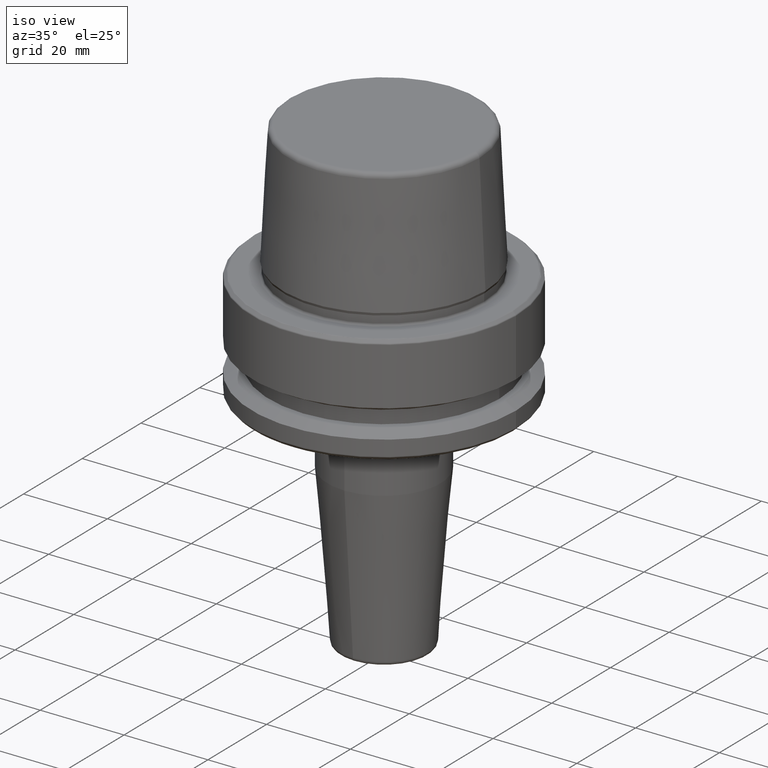
[diagram: clean part render]
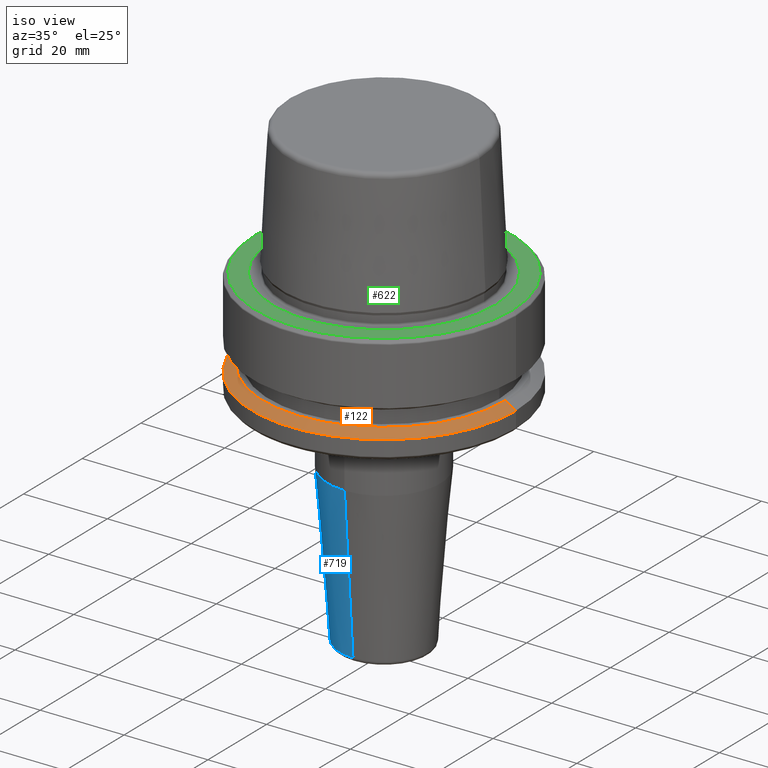
[diagram: same view with three faces highlighted in distinct colors, each labeled with its STEP entity id]
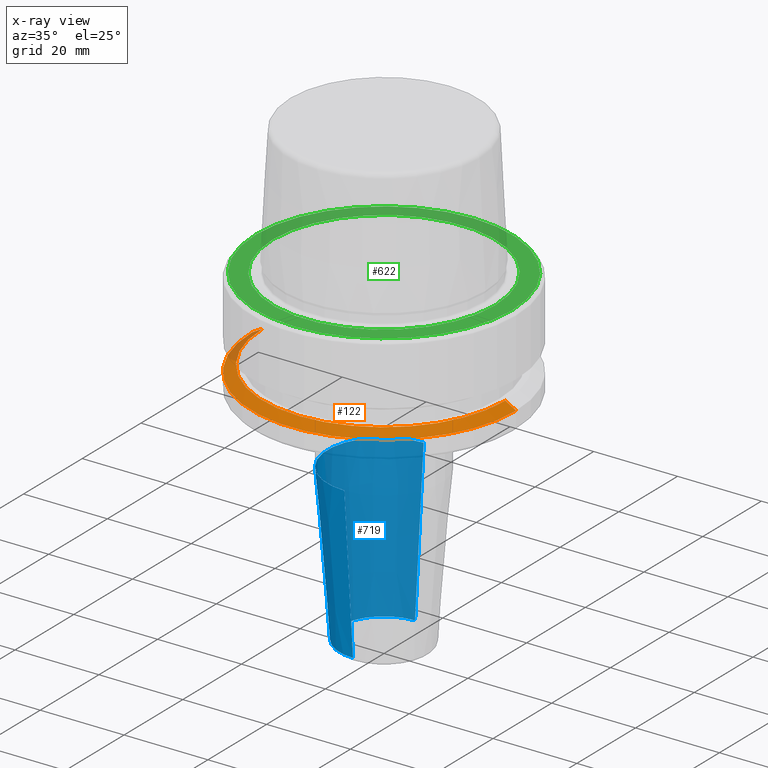
[diagram: x-ray of the same camera — body ghosted, the three highlighted faces saturated]
A machine part, iso view with three faces highlighted in distinct colors.
The next image is the same camera in x-ray (body ghosted, the three faces saturated) — at least one of them is partly hidden behind the body in this view.
Their STEP definitions:

[orange] entity #122 — the highlighted conical surface has half-angle 60 deg.
#44 = CARTESIAN_POINT ( 'NONE',  ( 31.50000000000000000, 3.857637417314162700E-015, -21.37749907475931700 ) ) ;
#70 = ORIENTED_EDGE ( 'NONE', *, *, #872, .T. ) ;
#75 = DIRECTION ( 'NONE',  ( 0.0000000000000000000, 0.0000000000000000000, -1.000000000000000000 ) ) ;
#89 = DIRECTION ( 'NONE',  ( -0.8660254037844410400, 0.0000000000000000000, -0.4999999999999958400 ) ) ;
#117 = AXIS2_PLACEMENT_3D ( 'NONE', #1102, #518, #1196 ) ;
#122 = ADVANCED_FACE ( 'NONE', ( #561 ), #525, .T. ) ;
#159 = VERTEX_POINT ( 'NONE', #791 ) ;
#183 = CARTESIAN_POINT ( 'NONE',  ( 31.50000000000000000, 0.0000000000000000000, -21.37749907475931700 ) ) ;
#262 = DIRECTION ( 'NONE',  ( -0.0000000000000000000, -0.0000000000000000000, 1.000000000000000000 ) ) ;
#285 = VERTEX_POINT ( 'NONE', #1128 ) ;
#308 = ORIENTED_EDGE ( 'NONE', *, *, #644, .F. ) ;
#397 = VERTEX_POINT ( 'NONE', #183 ) ;
#460 = DIRECTION ( 'NONE',  ( -1.000000000000000000, 0.0000000000000000000, 0.0000000000000000000 ) ) ;
#518 = DIRECTION ( 'NONE',  ( -0.0000000000000000000, -0.0000000000000000000, 1.000000000000000000 ) ) ;
#525 = CONICAL_SURFACE ( 'NONE', #1174, 31.50000000000000000, 1.047197551196602500 ) ;
#561 = FACE_OUTER_BOUND ( 'NONE', #1073, .T. ) ;
#617 = CIRCLE ( 'NONE', #784, 31.50000000000000000 ) ;
#629 = DIRECTION ( 'NONE',  ( 0.8660254037844410400, 1.060575238724909700E-016, -0.4999999999999958400 ) ) ;
#644 = EDGE_CURVE ( 'NONE', #990, #397, #939, .T. ) ;
#676 = CARTESIAN_POINT ( 'NONE',  ( -31.50000000000000000, 0.0000000000000000000, -21.37749907475931700 ) ) ;
#701 = CARTESIAN_POINT ( 'NONE',  ( 28.94089653438085100, 3.700937523921292900E-015, -19.90000000000001600 ) ) ;
#729 = ORIENTED_EDGE ( 'NONE', *, *, #1075, .F. ) ;
#750 = CIRCLE ( 'NONE', #117, 28.94089653438085100 ) ;
#784 = AXIS2_PLACEMENT_3D ( 'NONE', #862, #262, #957 ) ;
#791 = CARTESIAN_POINT ( 'NONE',  ( -31.50000000000000000, 3.857637417314162700E-015, -21.37749907475931700 ) ) ;
#827 = EDGE_CURVE ( 'NONE', #159, #397, #617, .T. ) ;
#862 = CARTESIAN_POINT ( 'NONE',  ( 0.0000000000000000000, 0.0000000000000000000, -21.37749907475931700 ) ) ;
#872 = EDGE_CURVE ( 'NONE', #285, #159, #1184, .T. ) ;
#931 = VECTOR ( 'NONE', #89, 1000.000000000000100 ) ;
#939 = LINE ( 'NONE', #44, #1192 ) ;
#944 = CARTESIAN_POINT ( 'NONE',  ( 0.0000000000000000000, 0.0000000000000000000, -21.37749907475931700 ) ) ;
#957 = DIRECTION ( 'NONE',  ( 1.000000000000000000, 0.0000000000000000000, 0.0000000000000000000 ) ) ;
#963 = ORIENTED_EDGE ( 'NONE', *, *, #827, .T. ) ;
#990 = VERTEX_POINT ( 'NONE', #701 ) ;
#1073 = EDGE_LOOP ( 'NONE', ( #308, #729, #70, #963 ) ) ;
#1075 = EDGE_CURVE ( 'NONE', #285, #990, #750, .T. ) ;
#1102 = CARTESIAN_POINT ( 'NONE',  ( 0.0000000000000000000, 0.0000000000000000000, -19.90000000000001600 ) ) ;
#1128 = CARTESIAN_POINT ( 'NONE',  ( -28.94089653438085100, 0.0000000000000000000, -19.90000000000001600 ) ) ;
#1174 = AXIS2_PLACEMENT_3D ( 'NONE', #944, #75, #460 ) ;
#1184 = LINE ( 'NONE', #676, #931 ) ;
#1192 = VECTOR ( 'NONE', #629, 1000.000000000000100 ) ;
#1196 = DIRECTION ( 'NONE',  ( 1.000000000000000000, 0.0000000000000000000, 0.0000000000000000000 ) ) ;

[blue] entity #719 — the highlighted conical surface has half-angle 4.5 deg.
#1 = DIRECTION ( 'NONE',  ( -0.0000000000000000000, -1.814291554292374900E-016, -1.000000000000000000 ) ) ;
#21 = ORIENTED_EDGE ( 'NONE', *, *, #809, .T. ) ;
#67 = VERTEX_POINT ( 'NONE', #746 ) ;
#126 = VERTEX_POINT ( 'NONE', #170 ) ;
#157 = CARTESIAN_POINT ( 'NONE',  ( 0.0000000000000000000, -9.629980005223225900E-015, -79.07845909572783700 ) ) ;
#170 = CARTESIAN_POINT ( 'NONE',  ( 0.0000000000000000000, -13.50000000000000200, -41.88138579147234000 ) ) ;
#231 = CARTESIAN_POINT ( 'NONE',  ( 0.0000000000000000000, -2.881346411192717100E-015, -41.88138579147234000 ) ) ;
#249 = DIRECTION ( 'NONE',  ( 0.0000000000000000000, 1.000000000000000000, 0.0000000000000000000 ) ) ;
#318 = EDGE_CURVE ( 'NONE', #126, #67, #1057, .T. ) ;
#382 = ORIENTED_EDGE ( 'NONE', *, *, #318, .T. ) ;
#403 = CIRCLE ( 'NONE', #1162, 10.57252684207491800 ) ;
#411 = EDGE_LOOP ( 'NONE', ( #677, #932, #21, #382 ) ) ;
#435 = CONICAL_SURFACE ( 'NONE', #1238, 13.49999999999999800, 0.07853981633973743100 ) ;
#438 = VERTEX_POINT ( 'NONE', #494 ) ;
#463 = LINE ( 'NONE', #923, #1206 ) ;
#494 = CARTESIAN_POINT ( 'NONE',  ( 0.0000000000000000000, 10.57252684207491100, -79.07845909572783700 ) ) ;
#557 = VERTEX_POINT ( 'NONE', #994 ) ;
#560 = CARTESIAN_POINT ( 'NONE',  ( 0.0000000000000000000, -13.50000000000000200, -41.88138579147234000 ) ) ;
#588 = DIRECTION ( 'NONE',  ( 0.0000000000000000000, 1.000000000000000000, 0.0000000000000000000 ) ) ;
#677 = ORIENTED_EDGE ( 'NONE', *, *, #1144, .F. ) ;
#683 = CARTESIAN_POINT ( 'NONE',  ( 0.0000000000000000000, -2.881346411192717100E-015, -41.88138579147234000 ) ) ;
#719 = ADVANCED_FACE ( 'NONE', ( #771 ), #435, .T. ) ;
#746 = CARTESIAN_POINT ( 'NONE',  ( 1.653273178848926700E-015, 13.49999999999999500, -41.88138579147234000 ) ) ;
#771 = FACE_OUTER_BOUND ( 'NONE', #411, .T. ) ;
#774 = EDGE_CURVE ( 'NONE', #557, #438, #403, .T. ) ;
#808 = AXIS2_PLACEMENT_3D ( 'NONE', #683, #1, #588 ) ;
#809 = EDGE_CURVE ( 'NONE', #557, #126, #904, .T. ) ;
#821 = DIRECTION ( 'NONE',  ( 9.608468044709202900E-018, 0.07845909572783772700, 0.9969173337331285200 ) ) ;
#848 = DIRECTION ( 'NONE',  ( -0.0000000000000000000, -1.814291554292374900E-016, -1.000000000000000000 ) ) ;
#904 = LINE ( 'NONE', #560, #1127 ) ;
#923 = CARTESIAN_POINT ( 'NONE',  ( 1.653273178848926700E-015, 13.49999999999999500, -41.88138579147234000 ) ) ;
#930 = DIRECTION ( 'NONE',  ( 0.0000000000000000000, 1.814291554292374900E-016, 1.000000000000000000 ) ) ;
#932 = ORIENTED_EDGE ( 'NONE', *, *, #774, .F. ) ;
#994 = CARTESIAN_POINT ( 'NONE',  ( 1.294761115604652600E-015, -10.57252684207493100, -79.07845909572783700 ) ) ;
#1024 = DIRECTION ( 'NONE',  ( 0.0000000000000000000, -1.000000000000000000, 0.0000000000000000000 ) ) ;
#1057 = CIRCLE ( 'NONE', #808, 13.49999999999999800 ) ;
#1127 = VECTOR ( 'NONE', #1234, 1000.000000000000200 ) ;
#1144 = EDGE_CURVE ( 'NONE', #438, #67, #463, .T. ) ;
#1162 = AXIS2_PLACEMENT_3D ( 'NONE', #157, #848, #249 ) ;
#1206 = VECTOR ( 'NONE', #821, 1000.000000000000000 ) ;
#1234 = DIRECTION ( 'NONE',  ( 0.0000000000000000000, -0.07845909572783736600, 0.9969173337331285200 ) ) ;
#1238 = AXIS2_PLACEMENT_3D ( 'NONE', #231, #930, #1024 ) ;

[green] entity #622 — the highlighted planar face has unit normal (0, 0, -1).
#40 = CARTESIAN_POINT ( 'NONE',  ( -26.52499999999999900, 3.248375634738354300E-015, 0.0000000000000000000 ) ) ;
#51 = VERTEX_POINT ( 'NONE', #148 ) ;
#94 = EDGE_CURVE ( 'NONE', #282, #487, #317, .T. ) ;
#148 = CARTESIAN_POINT ( 'NONE',  ( 26.52499999999999900, 0.0000000000000000000, 0.0000000000000000000 ) ) ;
#161 = DIRECTION ( 'NONE',  ( -0.0000000000000000000, -0.0000000000000000000, 1.000000000000000000 ) ) ;
#202 = EDGE_CURVE ( 'NONE', #618, #51, #1048, .T. ) ;
#210 = FACE_OUTER_BOUND ( 'NONE', #499, .T. ) ;
#236 = DIRECTION ( 'NONE',  ( -0.0000000000000000000, -0.0000000000000000000, 1.000000000000000000 ) ) ;
#275 = AXIS2_PLACEMENT_3D ( 'NONE', #558, #449, #662 ) ;
#282 = VERTEX_POINT ( 'NONE', #339 ) ;
#291 = AXIS2_PLACEMENT_3D ( 'NONE', #1000, #1008, #419 ) ;
#293 = ORIENTED_EDGE ( 'NONE', *, *, #391, .F. ) ;
#317 = CIRCLE ( 'NONE', #443, 30.53431457505076100 ) ;
#339 = CARTESIAN_POINT ( 'NONE',  ( 30.53431457505076100, 0.0000000000000000000, 0.0000000000000000000 ) ) ;
#391 = EDGE_CURVE ( 'NONE', #51, #618, #501, .T. ) ;
#419 = DIRECTION ( 'NONE',  ( -1.000000000000000000, 0.0000000000000000000, -0.0000000000000000000 ) ) ;
#443 = AXIS2_PLACEMENT_3D ( 'NONE', #754, #161, #855 ) ;
#449 = DIRECTION ( 'NONE',  ( -0.0000000000000000000, -0.0000000000000000000, 1.000000000000000000 ) ) ;
#458 = ORIENTED_EDGE ( 'NONE', *, *, #94, .T. ) ;
#483 = CARTESIAN_POINT ( 'NONE',  ( 0.0000000000000000000, 0.0000000000000000000, 0.0000000000000000000 ) ) ;
#487 = VERTEX_POINT ( 'NONE', #987 ) ;
#499 = EDGE_LOOP ( 'NONE', ( #458, #1186 ) ) ;
#501 = CIRCLE ( 'NONE', #1221, 26.52499999999999900 ) ;
#558 = CARTESIAN_POINT ( 'NONE',  ( 0.0000000000000000000, 0.0000000000000000000, 0.0000000000000000000 ) ) ;
#571 = ORIENTED_EDGE ( 'NONE', *, *, #202, .F. ) ;
#589 = DIRECTION ( 'NONE',  ( 1.000000000000000000, 0.0000000000000000000, 0.0000000000000000000 ) ) ;
#618 = VERTEX_POINT ( 'NONE', #40 ) ;
#622 = ADVANCED_FACE ( 'NONE', ( #999, #210 ), #814, .F. ) ;
#630 = EDGE_LOOP ( 'NONE', ( #293, #571 ) ) ;
#662 = DIRECTION ( 'NONE',  ( 1.000000000000000000, 0.0000000000000000000, 0.0000000000000000000 ) ) ;
#754 = CARTESIAN_POINT ( 'NONE',  ( 0.0000000000000000000, 0.0000000000000000000, 0.0000000000000000000 ) ) ;
#814 = PLANE ( 'NONE',  #291 ) ;
#828 = AXIS2_PLACEMENT_3D ( 'NONE', #830, #236, #929 ) ;
#830 = CARTESIAN_POINT ( 'NONE',  ( 0.0000000000000000000, 0.0000000000000000000, 0.0000000000000000000 ) ) ;
#855 = DIRECTION ( 'NONE',  ( 1.000000000000000000, 0.0000000000000000000, 0.0000000000000000000 ) ) ;
#929 = DIRECTION ( 'NONE',  ( 1.000000000000000000, 0.0000000000000000000, 0.0000000000000000000 ) ) ;
#987 = CARTESIAN_POINT ( 'NONE',  ( -30.53431457505076100, 3.756694181974138600E-015, 0.0000000000000000000 ) ) ;
#999 = FACE_BOUND ( 'NONE', #630, .T. ) ;
#1000 = CARTESIAN_POINT ( 'NONE',  ( 0.0000000000000000000, 26.52499999999999900, -1.111307226797642000E-015 ) ) ;
#1008 = DIRECTION ( 'NONE',  ( 0.0000000000000000000, 0.0000000000000000000, -1.000000000000000000 ) ) ;
#1048 = CIRCLE ( 'NONE', #275, 26.52499999999999900 ) ;
#1165 = DIRECTION ( 'NONE',  ( -0.0000000000000000000, -0.0000000000000000000, 1.000000000000000000 ) ) ;
#1176 = CIRCLE ( 'NONE', #828, 30.53431457505076100 ) ;
#1180 = EDGE_CURVE ( 'NONE', #487, #282, #1176, .T. ) ;
#1186 = ORIENTED_EDGE ( 'NONE', *, *, #1180, .T. ) ;
#1221 = AXIS2_PLACEMENT_3D ( 'NONE', #483, #1165, #589 ) ;